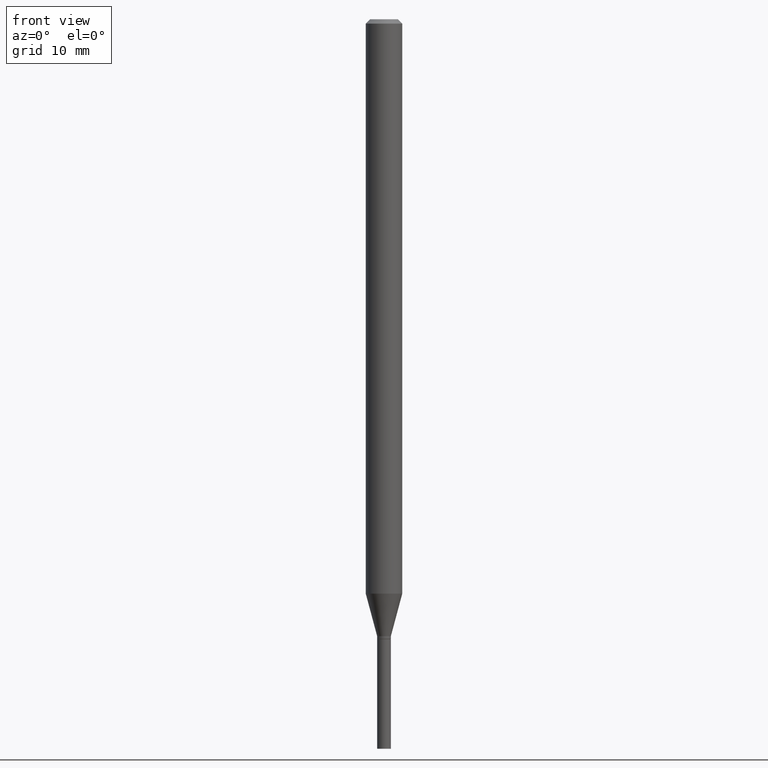
[diagram: clean part render]
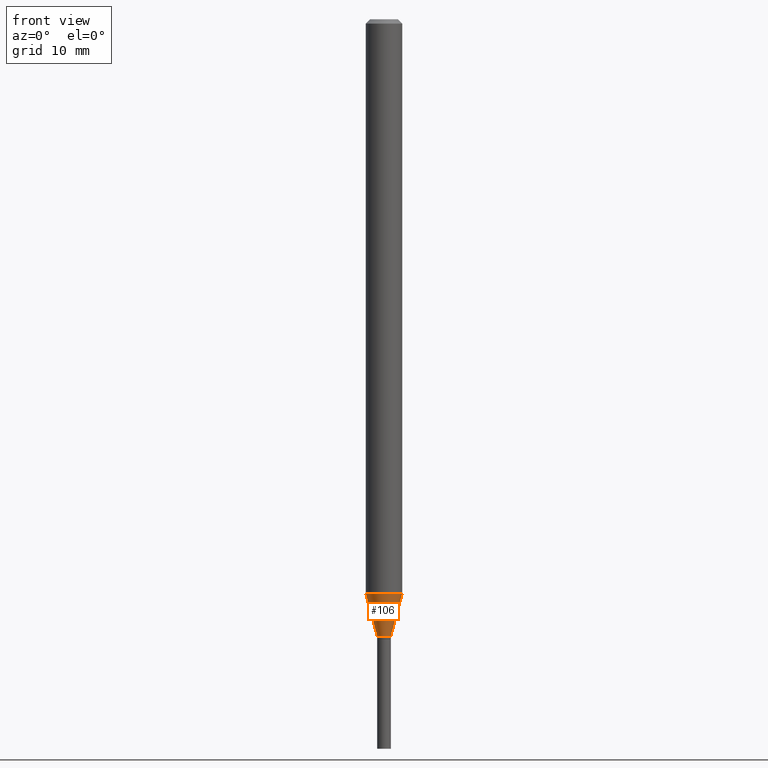
[diagram: same view with one face highlighted and labeled with its STEP entity id]
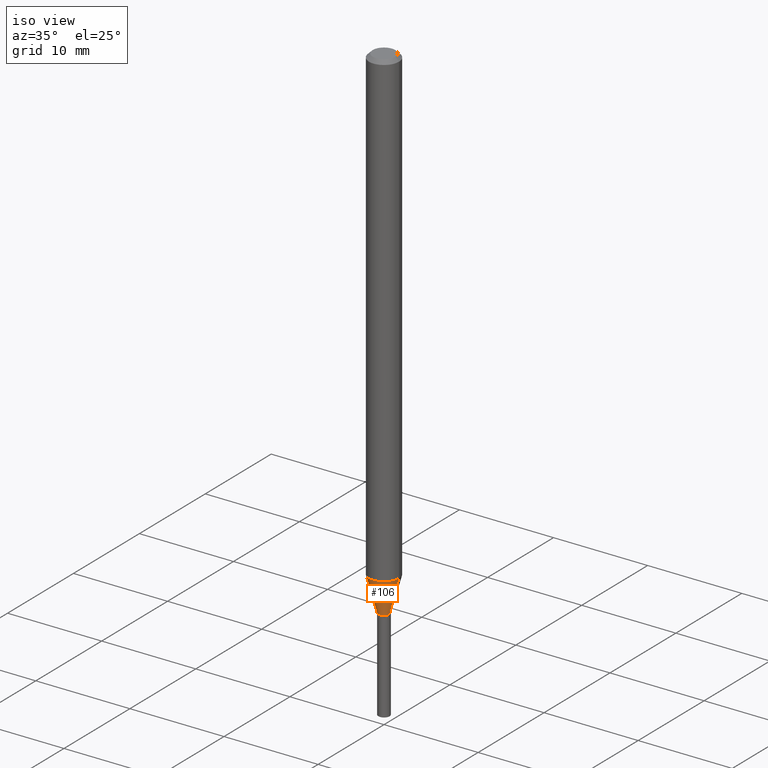
[diagram: same view with one face highlighted and labeled with its STEP entity id]
A machine part, front view. The second image highlights one B-rep face of the part: STEP entity #106.
A second angle (iso view) of the same face is appended — the face is thin or edge-on in the first view.
In plain terms, the highlighted conical surface has half-angle 15 deg.
Its self-contained STEP definition (entity closure, byte-faithful):
#19 = ORIENTED_EDGE ( 'NONE', *, *, #411, .T. ) ;
#29 = VERTEX_POINT ( 'NONE', #299 ) ;
#42 = CARTESIAN_POINT ( 'NONE',  ( 0.02350000000000019781, -7.545091173240038191E-15, -2.114000000000000323 ) ) ;
#48 = DIRECTION ( 'NONE',  ( 0.2588190451025217942, 1.565188264969618812E-15, 0.9659258262890679791 ) ) ;
#51 = DIRECTION ( 'NONE',  ( -2.445468806185136597E-29, 3.491481338843145583E-15, 1.000000000000000000 ) ) ;
#61 = VECTOR ( 'NONE', #268, 39.37007874015748143 ) ;
#63 = EDGE_CURVE ( 'NONE', #29, #303, #273, .T. ) ;
#72 = EDGE_LOOP ( 'NONE', ( #95, #324, #19, #294 ) ) ;
#76 = CARTESIAN_POINT ( 'NONE',  ( 4.813783116788080428E-29, -6.872806506055007180E-15, -1.968450018504815269 ) ) ;
#95 = ORIENTED_EDGE ( 'NONE', *, *, #63, .F. ) ;
#106 = ADVANCED_FACE ( 'NONE', ( #200 ), #153, .T. ) ;
#114 = CARTESIAN_POINT ( 'NONE',  ( -0.02350000000000019781, -7.214014007410784881E-15, -2.114000000000000323 ) ) ;
#120 = DIRECTION ( 'NONE',  ( 1.000000000000000000, -6.982962677686253300E-15, 0.000000000000000000 ) ) ;
#128 = AXIS2_PLACEMENT_3D ( 'NONE', #314, #156, #120 ) ;
#153 = CONICAL_SURFACE ( 'NONE', #128, 0.02350000000000019781, 0.2617993877991505181 ) ;
#156 = DIRECTION ( 'NONE',  ( -2.445468806185136597E-29, 3.491481338843145583E-15, 1.000000000000000000 ) ) ;
#159 = CIRCLE ( 'NONE', #455, 0.02350000000000019781 ) ;
#160 = EDGE_CURVE ( 'NONE', #303, #257, #194, .T. ) ;
#164 = VECTOR ( 'NONE', #48, 39.37007874015748143 ) ;
#169 = CARTESIAN_POINT ( 'NONE',  ( -0.06250000000000000000, -6.428717296204944564E-15, -1.968450018504815269 ) ) ;
#180 = VERTEX_POINT ( 'NONE', #362 ) ;
#181 = DIRECTION ( 'NONE',  ( -2.445468806185136597E-29, 3.491481338843145583E-15, 1.000000000000000000 ) ) ;
#194 = CIRCLE ( 'NONE', #215, 0.06250000000000000000 ) ;
#200 = FACE_OUTER_BOUND ( 'NONE', #72, .T. ) ;
#215 = AXIS2_PLACEMENT_3D ( 'NONE', #76, #181, #330 ) ;
#230 = DIRECTION ( 'NONE',  ( 1.000000000000000000, -6.982962677686253300E-15, 0.000000000000000000 ) ) ;
#257 = VERTEX_POINT ( 'NONE', #269 ) ;
#268 = DIRECTION ( 'NONE',  ( -0.2588190451025217942, 5.211531920934552619E-15, 0.9659258262890679791 ) ) ;
#269 = CARTESIAN_POINT ( 'NONE',  ( 0.06250000000000000000, -7.309241673410397272E-15, -1.968450018504815269 ) ) ;
#273 = LINE ( 'NONE', #114, #61 ) ;
#294 = ORIENTED_EDGE ( 'NONE', *, *, #160, .F. ) ;
#299 = CARTESIAN_POINT ( 'NONE',  ( -0.02350000000000019781, -6.821365651807865511E-15, -2.114000000000000323 ) ) ;
#303 = VERTEX_POINT ( 'NONE', #169 ) ;
#314 = CARTESIAN_POINT ( 'NONE',  ( 5.169721056275379241E-29, -7.380991550314410545E-15, -2.114000000000000323 ) ) ;
#324 = ORIENTED_EDGE ( 'NONE', *, *, #417, .T. ) ;
#330 = DIRECTION ( 'NONE',  ( 1.000000000000000000, -6.982962677686262766E-15, 0.000000000000000000 ) ) ;
#342 = CARTESIAN_POINT ( 'NONE',  ( 5.169721056275379241E-29, -7.380991550314410545E-15, -2.114000000000000323 ) ) ;
#362 = CARTESIAN_POINT ( 'NONE',  ( 0.02350000000000019781, -7.545091173240038191E-15, -2.114000000000000323 ) ) ;
#402 = LINE ( 'NONE', #42, #164 ) ;
#411 = EDGE_CURVE ( 'NONE', #180, #257, #402, .T. ) ;
#417 = EDGE_CURVE ( 'NONE', #29, #180, #159, .T. ) ;
#455 = AXIS2_PLACEMENT_3D ( 'NONE', #342, #51, #230 ) ;